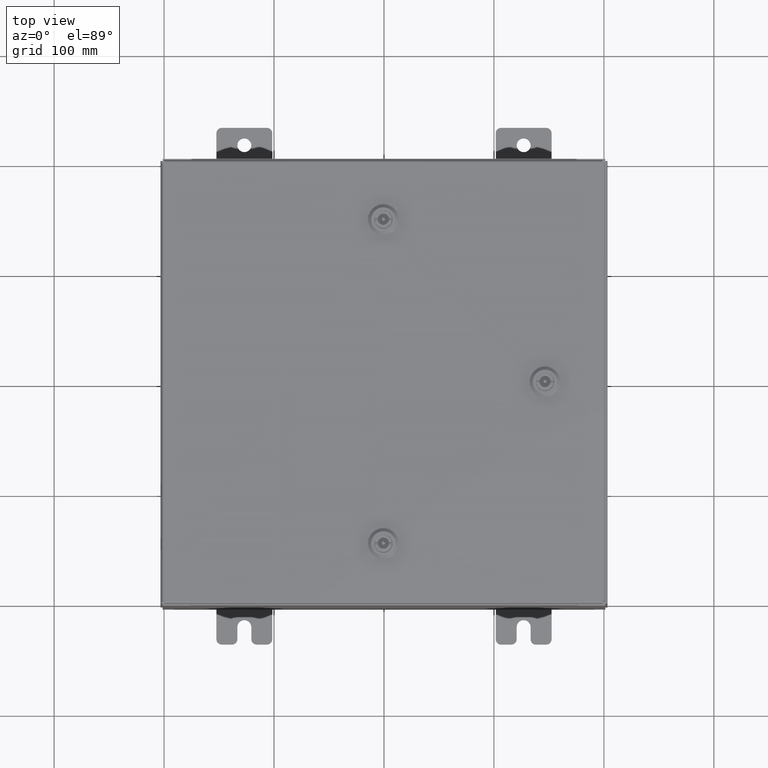
[diagram: clean part render]
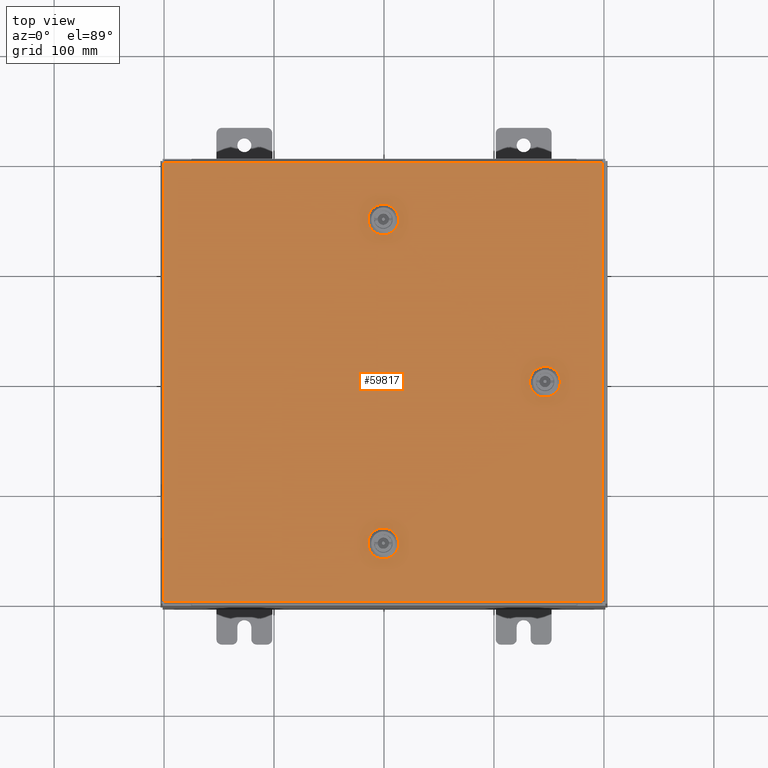
[diagram: same view with one face highlighted and labeled with its STEP entity id]
A machine part, top view. The second image highlights one B-rep face of the part: STEP entity #59817.
In plain terms, the highlighted planar face has unit normal (0, 0, -1).
Its self-contained STEP definition (entity closure, byte-faithful):
#435 = CARTESIAN_POINT ( 'NONE',  ( 1.529834876451987200E-014, 5.787799999999992700, 0.0000000000000000000 ) ) ;
#767 = CIRCLE ( 'NONE', #42055, 0.4424999999999973400 ) ;
#1062 = CARTESIAN_POINT ( 'NONE',  ( -0.1994523752678689600, 5.392799999999994900, 0.0000000000000000000 ) ) ;
#2389 = EDGE_CURVE ( 'NONE', #28013, #60141, #60222, .T. ) ;
#2943 = EDGE_CURVE ( 'NONE', #37034, #57714, #46570, .T. ) ;
#3296 = EDGE_CURVE ( 'NONE', #49514, #4434, #35962, .T. ) ;
#3962 = ORIENTED_EDGE ( 'NONE', *, *, #33272, .T. ) ;
#4008 = VECTOR ( 'NONE', #4676, 39.37007874015748100 ) ;
#4434 = VERTEX_POINT ( 'NONE', #46133 ) ;
#4676 = DIRECTION ( 'NONE',  ( 0.0000000000000000000, -1.000000000000000000, 0.0000000000000000000 ) ) ;
#4820 = AXIS2_PLACEMENT_3D ( 'NONE', #26786, #60597, #31655 ) ;
#4860 = ORIENTED_EDGE ( 'NONE', *, *, #13148, .T. ) ;
#4891 = DIRECTION ( 'NONE',  ( -1.000000000000000000, 0.0000000000000000000, -0.0000000000000000000 ) ) ;
#5259 = DIRECTION ( 'NONE',  ( 1.000000000000000000, 0.0000000000000000000, 0.0000000000000000000 ) ) ;
#6254 = CARTESIAN_POINT ( 'NONE',  ( 6.182800000000003000, 0.1994523752679009100, 0.0000000000000000000 ) ) ;
#6478 = EDGE_CURVE ( 'NONE', #62344, #23849, #767, .T. ) ;
#6711 = CARTESIAN_POINT ( 'NONE',  ( 1.529834876451987200E-014, -5.787799999999992700, -4.962582086151294400E-014 ) ) ;
#8951 = CIRCLE ( 'NONE', #59519, 0.4424999999999972800 ) ;
#9110 = DIRECTION ( 'NONE',  ( -0.0000000000000000000, -6.982962677686266700E-015, 1.000000000000000000 ) ) ;
#9122 = CARTESIAN_POINT ( 'NONE',  ( -0.1994523752678657400, -6.182799999999990500, 0.0000000000000000000 ) ) ;
#9138 = CARTESIAN_POINT ( 'NONE',  ( 0.4425000000000126100, -5.787799999999992700, -4.962582086151294400E-014 ) ) ;
#10309 = VECTOR ( 'NONE', #60378, 39.37007874015748100 ) ;
#10997 = CARTESIAN_POINT ( 'NONE',  ( 6.182800000000007400, -0.1994523752678676000, 0.0000000000000000000 ) ) ;
#11420 = VECTOR ( 'NONE', #23452, 39.37007874015748100 ) ;
#11576 = DIRECTION ( 'NONE',  ( 0.0000000000000000000, 1.000000000000000000, 6.982962677686269100E-015 ) ) ;
#11608 = CARTESIAN_POINT ( 'NONE',  ( 5.392800000000015400, 0.1994523752679053800, 0.0000000000000000000 ) ) ;
#12055 = CARTESIAN_POINT ( 'NONE',  ( 0.1994523752678995500, -5.392799999999995800, -4.686755060382689600E-014 ) ) ;
#13148 = EDGE_CURVE ( 'NONE', #38192, #50062, #31417, .T. ) ;
#13273 = AXIS2_PLACEMENT_3D ( 'NONE', #435, #34190, #5259 ) ;
#13329 = ORIENTED_EDGE ( 'NONE', *, *, #24970, .F. ) ;
#14241 = AXIS2_PLACEMENT_3D ( 'NONE', #6711, #40451, #11576 ) ;
#14368 = EDGE_CURVE ( 'NONE', #29482, #38192, #28316, .T. ) ;
#14808 = EDGE_CURVE ( 'NONE', #57714, #38368, #41869, .T. ) ;
#15273 = DIRECTION ( 'NONE',  ( 0.0000000000000000000, 0.0000000000000000000, 1.000000000000000000 ) ) ;
#15513 = VECTOR ( 'NONE', #31224, 39.37007874015748100 ) ;
#15805 = CARTESIAN_POINT ( 'NONE',  ( 0.1994523752678995500, 5.392799999999995800, 0.0000000000000000000 ) ) ;
#16304 = CARTESIAN_POINT ( 'NONE',  ( -7.849800000000000100, -7.849800000000000100, -2.219626494852214000E-016 ) ) ;
#16436 = CARTESIAN_POINT ( 'NONE',  ( 5.392800000000015400, 0.1994523752679058200, 0.0000000000000000000 ) ) ;
#17048 = ORIENTED_EDGE ( 'NONE', *, *, #14808, .F. ) ;
#17445 = CIRCLE ( 'NONE', #34124, 0.4424999999999983400 ) ;
#18512 = EDGE_LOOP ( 'NONE', ( #13329, #25526, #30611, #35864, #50860 ) ) ;
#18513 = DIRECTION ( 'NONE',  ( -1.000000000000000000, -0.0000000000000000000, -0.0000000000000000000 ) ) ;
#19327 = CARTESIAN_POINT ( 'NONE',  ( 0.0000000000000000000, 0.0000000000000000000, 0.0000000000000000000 ) ) ;
#19448 = VECTOR ( 'NONE', #19902, 39.37007874015748100 ) ;
#19902 = DIRECTION ( 'NONE',  ( -8.218046007208852600E-015, 1.000000000000000000, -0.0000000000000000000 ) ) ;
#20356 = VERTEX_POINT ( 'NONE', #9138 ) ;
#20561 = EDGE_CURVE ( 'NONE', #38368, #22631, #57740, .T. ) ;
#21198 = ORIENTED_EDGE ( 'NONE', *, *, #14368, .T. ) ;
#21431 = CIRCLE ( 'NONE', #25630, 0.4424999999999973400 ) ;
#21470 = VERTEX_POINT ( 'NONE', #9122 ) ;
#21872 = CARTESIAN_POINT ( 'NONE',  ( -7.849800000000000100, -7.849800000000000100, -2.219626494852214000E-016 ) ) ;
#21965 = ORIENTED_EDGE ( 'NONE', *, *, #20561, .F. ) ;
#22268 = CARTESIAN_POINT ( 'NONE',  ( 5.787800000000007800, 1.529834876451990400E-014, 0.0000000000000000000 ) ) ;
#22631 = VERTEX_POINT ( 'NONE', #44765 ) ;
#23452 = DIRECTION ( 'NONE',  ( 1.000000000000000000, 2.739348669069617500E-015, -0.0000000000000000000 ) ) ;
#23462 = ORIENTED_EDGE ( 'NONE', *, *, #25866, .F. ) ;
#23742 = DIRECTION ( 'NONE',  ( 1.000000000000000000, 1.369674334534795400E-014, 9.732121487607481600E-029 ) ) ;
#23849 = VERTEX_POINT ( 'NONE', #62598 ) ;
#24147 = CARTESIAN_POINT ( 'NONE',  ( 7.849800000000000100, -7.849800000000000100, -2.219626494852214000E-016 ) ) ;
#24269 = LINE ( 'NONE', #37755, #11420 ) ;
#24312 = DIRECTION ( 'NONE',  ( -0.0000000000000000000, -6.982962677686266700E-015, 1.000000000000000000 ) ) ;
#24540 = FACE_BOUND ( 'NONE', #46788, .T. ) ;
#24898 = EDGE_LOOP ( 'NONE', ( #51623, #52997, #21965, #17048 ) ) ;
#24970 = EDGE_CURVE ( 'NONE', #60141, #62344, #24269, .T. ) ;
#25526 = ORIENTED_EDGE ( 'NONE', *, *, #2389, .F. ) ;
#25630 = AXIS2_PLACEMENT_3D ( 'NONE', #26185, #59965, #31032 ) ;
#25866 = EDGE_CURVE ( 'NONE', #4434, #21470, #17445, .T. ) ;
#26036 = FACE_OUTER_BOUND ( 'NONE', #31181, .T. ) ;
#26185 = CARTESIAN_POINT ( 'NONE',  ( 1.529834876451987200E-014, 5.787799999999992700, 0.0000000000000000000 ) ) ;
#26431 = ORIENTED_EDGE ( 'NONE', *, *, #3296, .F. ) ;
#26786 = CARTESIAN_POINT ( 'NONE',  ( 5.787800000000007800, 1.529834876451990400E-014, 0.0000000000000000000 ) ) ;
#27073 = DIRECTION ( 'NONE',  ( 1.000000000000000000, 0.0000000000000000000, 0.0000000000000000000 ) ) ;
#28013 = VERTEX_POINT ( 'NONE', #52690 ) ;
#28242 = CARTESIAN_POINT ( 'NONE',  ( 7.849800000000000100, 7.849800000000000100, -2.219626494852214000E-016 ) ) ;
#28316 = LINE ( 'NONE', #60171, #15513 ) ;
#29276 = AXIS2_PLACEMENT_3D ( 'NONE', #19327, #33832, #4891 ) ;
#29482 = VERTEX_POINT ( 'NONE', #24147 ) ;
#29484 = VECTOR ( 'NONE', #23742, 39.37007874015748100 ) ;
#29906 = VECTOR ( 'NONE', #18513, 39.37007874015748100 ) ;
#30423 = ORIENTED_EDGE ( 'NONE', *, *, #48421, .F. ) ;
#30611 = ORIENTED_EDGE ( 'NONE', *, *, #35490, .F. ) ;
#31032 = DIRECTION ( 'NONE',  ( 1.000000000000000000, 0.0000000000000000000, 0.0000000000000000000 ) ) ;
#31181 = EDGE_LOOP ( 'NONE', ( #40876, #21198, #4860, #3962 ) ) ;
#31224 = DIRECTION ( 'NONE',  ( 0.0000000000000000000, 1.000000000000000000, 0.0000000000000000000 ) ) ;
#31417 = LINE ( 'NONE', #52006, #29906 ) ;
#31535 = DIRECTION ( 'NONE',  ( 1.000000000000000000, -0.0000000000000000000, -0.0000000000000000000 ) ) ;
#31655 = DIRECTION ( 'NONE',  ( 1.000000000000000000, 0.0000000000000000000, 0.0000000000000000000 ) ) ;
#31814 = LINE ( 'NONE', #54319, #55970 ) ;
#32575 = CARTESIAN_POINT ( 'NONE',  ( -7.849800000000000100, 7.849800000000000100, -2.048885995248197400E-016 ) ) ;
#33000 = EDGE_CURVE ( 'NONE', #23849, #45406, #21431, .T. ) ;
#33224 = CARTESIAN_POINT ( 'NONE',  ( 0.1994523752679067700, -6.182799999999984300, -5.238409111919896100E-014 ) ) ;
#33272 = EDGE_CURVE ( 'NONE', #50062, #37124, #52336, .T. ) ;
#33606 = CARTESIAN_POINT ( 'NONE',  ( -7.849800000000000100, 7.849800000000000100, -2.048885995248197400E-016 ) ) ;
#33619 = PLANE ( 'NONE',  #29276 ) ;
#33832 = DIRECTION ( 'NONE',  ( 0.0000000000000000000, 0.0000000000000000000, -1.000000000000000000 ) ) ;
#34124 = AXIS2_PLACEMENT_3D ( 'NONE', #53193, #24312, #58090 ) ;
#34190 = DIRECTION ( 'NONE',  ( 0.0000000000000000000, 0.0000000000000000000, 1.000000000000000000 ) ) ;
#35490 = EDGE_CURVE ( 'NONE', #45406, #28013, #31814, .T. ) ;
#35843 = DIRECTION ( 'NONE',  ( -1.095739467627836100E-014, -1.000000000000000000, 0.0000000000000000000 ) ) ;
#35864 = ORIENTED_EDGE ( 'NONE', *, *, #33000, .F. ) ;
#35962 = LINE ( 'NONE', #12055, #10309 ) ;
#36620 = CIRCLE ( 'NONE', #14241, 0.4424999999999972800 ) ;
#37034 = VERTEX_POINT ( 'NONE', #10997 ) ;
#37124 = VERTEX_POINT ( 'NONE', #16304 ) ;
#37671 = CIRCLE ( 'NONE', #4820, 0.4424999999999983400 ) ;
#37755 = CARTESIAN_POINT ( 'NONE',  ( 0.1994523752678995500, 5.392799999999995800, 0.0000000000000000000 ) ) ;
#37987 = CARTESIAN_POINT ( 'NONE',  ( 1.529834876451987200E-014, -5.787799999999992700, -4.962582086151294400E-014 ) ) ;
#38192 = VERTEX_POINT ( 'NONE', #28242 ) ;
#38368 = VERTEX_POINT ( 'NONE', #16436 ) ;
#38501 = CARTESIAN_POINT ( 'NONE',  ( 0.1994523752678995500, -5.392799999999995800, -4.686755060382689600E-014 ) ) ;
#38851 = FACE_BOUND ( 'NONE', #18512, .T. ) ;
#39820 = EDGE_CURVE ( 'NONE', #22631, #37034, #37671, .T. ) ;
#40451 = DIRECTION ( 'NONE',  ( -0.0000000000000000000, -6.982962677686266700E-015, 1.000000000000000000 ) ) ;
#40876 = ORIENTED_EDGE ( 'NONE', *, *, #43344, .T. ) ;
#41030 = EDGE_CURVE ( 'NONE', #50958, #20356, #8951, .T. ) ;
#41869 = CIRCLE ( 'NONE', #48699, 0.4424999999999972800 ) ;
#42055 = AXIS2_PLACEMENT_3D ( 'NONE', #44128, #15273, #48989 ) ;
#42309 = LINE ( 'NONE', #33224, #29484 ) ;
#42849 = DIRECTION ( 'NONE',  ( 0.0000000000000000000, 1.000000000000000000, 6.982962677686269100E-015 ) ) ;
#43344 = EDGE_CURVE ( 'NONE', #37124, #29482, #62426, .T. ) ;
#43691 = CARTESIAN_POINT ( 'NONE',  ( 6.182800000000003000, 0.1994523752679009100, 0.0000000000000000000 ) ) ;
#44128 = CARTESIAN_POINT ( 'NONE',  ( 1.529834876451987200E-014, 5.787799999999992700, 0.0000000000000000000 ) ) ;
#44765 = CARTESIAN_POINT ( 'NONE',  ( 5.392800000000011800, -0.1994523752678671000, 0.0000000000000000000 ) ) ;
#45406 = VERTEX_POINT ( 'NONE', #51063 ) ;
#46133 = CARTESIAN_POINT ( 'NONE',  ( -0.1994523752678689600, -5.392799999999994900, -4.686755060382689000E-014 ) ) ;
#46570 = LINE ( 'NONE', #43691, #19448 ) ;
#46788 = EDGE_LOOP ( 'NONE', ( #30423, #23462, #26431, #59978, #58558 ) ) ;
#48421 = EDGE_CURVE ( 'NONE', #21470, #50958, #42309, .T. ) ;
#48699 = AXIS2_PLACEMENT_3D ( 'NONE', #22268, #55994, #27073 ) ;
#48989 = DIRECTION ( 'NONE',  ( 1.000000000000000000, 0.0000000000000000000, 0.0000000000000000000 ) ) ;
#49514 = VERTEX_POINT ( 'NONE', #38501 ) ;
#49573 = VECTOR ( 'NONE', #31535, 39.37007874015748100 ) ;
#50062 = VERTEX_POINT ( 'NONE', #32575 ) ;
#50213 = FACE_BOUND ( 'NONE', #24898, .T. ) ;
#50860 = ORIENTED_EDGE ( 'NONE', *, *, #6478, .F. ) ;
#50958 = VERTEX_POINT ( 'NONE', #57621 ) ;
#51063 = CARTESIAN_POINT ( 'NONE',  ( 0.1994523752679068500, 6.182799999999984300, 0.0000000000000000000 ) ) ;
#51623 = ORIENTED_EDGE ( 'NONE', *, *, #2943, .F. ) ;
#52006 = CARTESIAN_POINT ( 'NONE',  ( 7.849800000000000100, 7.849800000000000100, -2.219626494852214000E-016 ) ) ;
#52336 = LINE ( 'NONE', #33606, #4008 ) ;
#52690 = CARTESIAN_POINT ( 'NONE',  ( -0.1994523752678657400, 6.182799999999989600, 0.0000000000000000000 ) ) ;
#52997 = ORIENTED_EDGE ( 'NONE', *, *, #39820, .F. ) ;
#53193 = CARTESIAN_POINT ( 'NONE',  ( 1.529834876451987200E-014, -5.787799999999992700, -4.962582086151294400E-014 ) ) ;
#54319 = CARTESIAN_POINT ( 'NONE',  ( 0.1994523752679067700, 6.182799999999984300, 0.0000000000000000000 ) ) ;
#55970 = VECTOR ( 'NONE', #59208, 39.37007874015748100 ) ;
#55994 = DIRECTION ( 'NONE',  ( 0.0000000000000000000, 0.0000000000000000000, 1.000000000000000000 ) ) ;
#56211 = VECTOR ( 'NONE', #35843, 39.37007874015748100 ) ;
#56471 = EDGE_CURVE ( 'NONE', #20356, #49514, #36620, .T. ) ;
#57621 = CARTESIAN_POINT ( 'NONE',  ( 0.1994523752679070700, -6.182799999999984300, -5.238409111919896100E-014 ) ) ;
#57714 = VERTEX_POINT ( 'NONE', #6254 ) ;
#57740 = LINE ( 'NONE', #11608, #56211 ) ;
#58090 = DIRECTION ( 'NONE',  ( 0.0000000000000000000, 1.000000000000000000, 6.982962677686252500E-015 ) ) ;
#58558 = ORIENTED_EDGE ( 'NONE', *, *, #41030, .F. ) ;
#59208 = DIRECTION ( 'NONE',  ( -1.000000000000000000, 1.369674334534795400E-014, 0.0000000000000000000 ) ) ;
#59519 = AXIS2_PLACEMENT_3D ( 'NONE', #37987, #9110, #42849 ) ;
#59817 = ADVANCED_FACE ( 'NONE', ( #50213, #24540, #38851, #26036 ), #33619, .F. ) ;
#59965 = DIRECTION ( 'NONE',  ( 0.0000000000000000000, 0.0000000000000000000, 1.000000000000000000 ) ) ;
#59978 = ORIENTED_EDGE ( 'NONE', *, *, #56471, .F. ) ;
#60141 = VERTEX_POINT ( 'NONE', #1062 ) ;
#60171 = CARTESIAN_POINT ( 'NONE',  ( 7.849800000000000100, -7.849800000000000100, -2.219626494852214000E-016 ) ) ;
#60222 = CIRCLE ( 'NONE', #13273, 0.4424999999999979500 ) ;
#60378 = DIRECTION ( 'NONE',  ( -1.000000000000000000, 2.739348669069617500E-015, 1.946424297521515400E-029 ) ) ;
#60597 = DIRECTION ( 'NONE',  ( 0.0000000000000000000, 0.0000000000000000000, 1.000000000000000000 ) ) ;
#62344 = VERTEX_POINT ( 'NONE', #15805 ) ;
#62426 = LINE ( 'NONE', #21872, #49573 ) ;
#62598 = CARTESIAN_POINT ( 'NONE',  ( 0.4425000000000126100, 5.787799999999992700, 0.0000000000000000000 ) ) ;